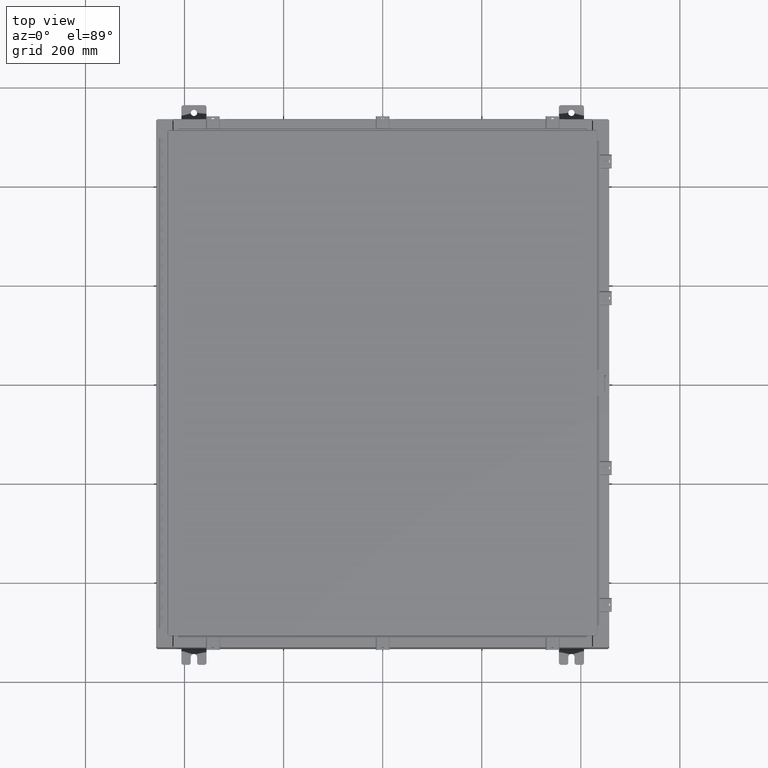
[diagram: clean part render]
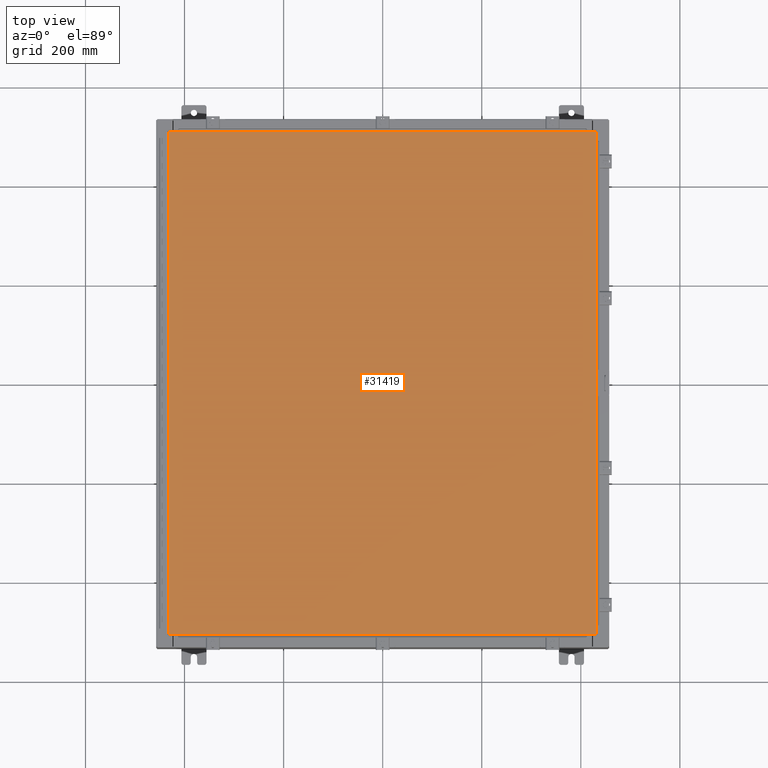
[diagram: same view with one face highlighted and labeled with its STEP entity id]
A machine part, top view. The second image highlights one B-rep face of the part: STEP entity #31419.
In plain terms, the highlighted planar face has unit normal (0, 0, -1).
Its self-contained STEP definition (entity closure, byte-faithful):
#2481 = AXIS2_PLACEMENT_3D ( 'NONE', #44304, #32916, #10062 ) ;
#6209 = PLANE ( 'NONE',  #2481 ) ;
#6388 = FACE_OUTER_BOUND ( 'NONE', #14793, .T. ) ;
#6764 = DIRECTION ( 'NONE',  ( -1.000000000000000000, -0.0000000000000000000, -0.0000000000000000000 ) ) ;
#9110 = CARTESIAN_POINT ( 'NONE',  ( -16.99029999999999800, -20.00630000000000700, 1.946441695485787500E-015 ) ) ;
#9693 = LINE ( 'NONE', #47324, #28808 ) ;
#9713 = EDGE_CURVE ( 'NONE', #25271, #42761, #19790, .T. ) ;
#10062 = DIRECTION ( 'NONE',  ( -1.000000000000000000, 0.0000000000000000000, -0.0000000000000000000 ) ) ;
#10360 = LINE ( 'NONE', #39380, #48609 ) ;
#13106 = VERTEX_POINT ( 'NONE', #9110 ) ;
#14793 = EDGE_LOOP ( 'NONE', ( #47199, #47904, #41026, #25640 ) ) ;
#15359 = CARTESIAN_POINT ( 'NONE',  ( 16.99029999999999800, 20.00630000000000700, 1.946441695485787500E-015 ) ) ;
#19414 = VERTEX_POINT ( 'NONE', #32154 ) ;
#19790 = LINE ( 'NONE', #48682, #49066 ) ;
#20336 = DIRECTION ( 'NONE',  ( 1.000000000000000000, -0.0000000000000000000, -0.0000000000000000000 ) ) ;
#25021 = VECTOR ( 'NONE', #27635, 39.37007874015748100 ) ;
#25271 = VERTEX_POINT ( 'NONE', #15359 ) ;
#25640 = ORIENTED_EDGE ( 'NONE', *, *, #34956, .T. ) ;
#27635 = DIRECTION ( 'NONE',  ( 0.0000000000000000000, 1.000000000000000000, 0.0000000000000000000 ) ) ;
#28281 = DIRECTION ( 'NONE',  ( 0.0000000000000000000, -1.000000000000000000, 0.0000000000000000000 ) ) ;
#28808 = VECTOR ( 'NONE', #28281, 39.37007874015748100 ) ;
#31419 = ADVANCED_FACE ( 'NONE', ( #6388 ), #6209, .F. ) ;
#32154 = CARTESIAN_POINT ( 'NONE',  ( 16.99029999999999800, -20.00630000000000300, -2.048885995248197400E-016 ) ) ;
#32916 = DIRECTION ( 'NONE',  ( 0.0000000000000000000, 0.0000000000000000000, -1.000000000000000000 ) ) ;
#34197 = EDGE_CURVE ( 'NONE', #13106, #19414, #10360, .T. ) ;
#34956 = EDGE_CURVE ( 'NONE', #42761, #13106, #9693, .T. ) ;
#39380 = CARTESIAN_POINT ( 'NONE',  ( -16.99029999999999800, -20.00630000000000700, 1.946441695485787500E-015 ) ) ;
#41026 = ORIENTED_EDGE ( 'NONE', *, *, #9713, .T. ) ;
#41942 = CARTESIAN_POINT ( 'NONE',  ( -16.99029999999998400, 20.00630000000000300, -2.048885995248197400E-016 ) ) ;
#42661 = CARTESIAN_POINT ( 'NONE',  ( 16.99029999999999800, -20.00630000000000300, -2.048885995248197400E-016 ) ) ;
#42761 = VERTEX_POINT ( 'NONE', #41942 ) ;
#44304 = CARTESIAN_POINT ( 'NONE',  ( 0.0000000000000000000, 0.0000000000000000000, 0.0000000000000000000 ) ) ;
#45320 = LINE ( 'NONE', #42661, #25021 ) ;
#45795 = EDGE_CURVE ( 'NONE', #19414, #25271, #45320, .T. ) ;
#47199 = ORIENTED_EDGE ( 'NONE', *, *, #34197, .T. ) ;
#47324 = CARTESIAN_POINT ( 'NONE',  ( -16.99029999999998400, 20.00630000000000300, -2.048885995248197400E-016 ) ) ;
#47904 = ORIENTED_EDGE ( 'NONE', *, *, #45795, .T. ) ;
#48609 = VECTOR ( 'NONE', #20336, 39.37007874015748100 ) ;
#48682 = CARTESIAN_POINT ( 'NONE',  ( 16.99029999999999800, 20.00630000000000700, 1.946441695485787500E-015 ) ) ;
#49066 = VECTOR ( 'NONE', #6764, 39.37007874015748100 ) ;